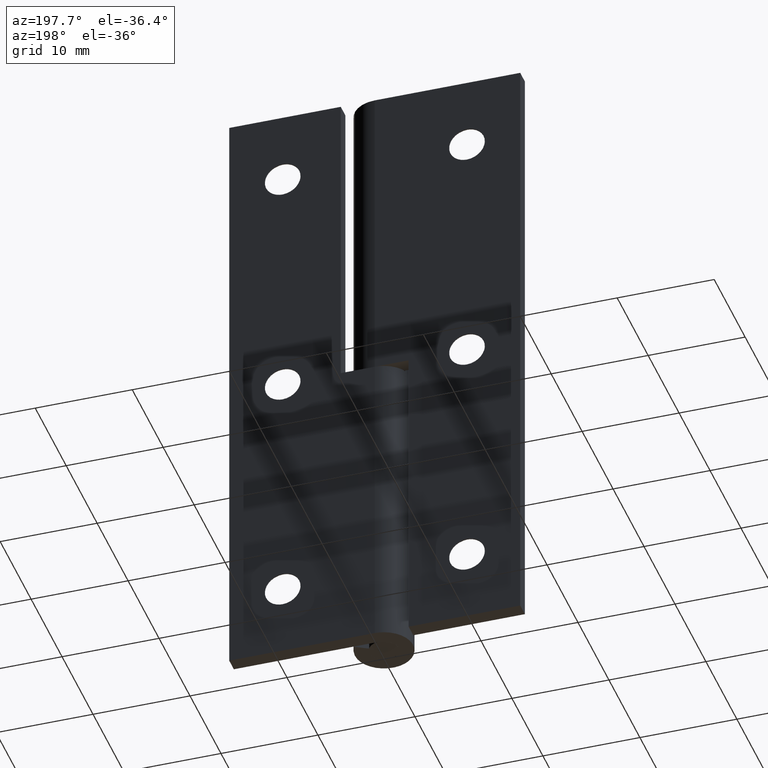
[diagram: clean part render]
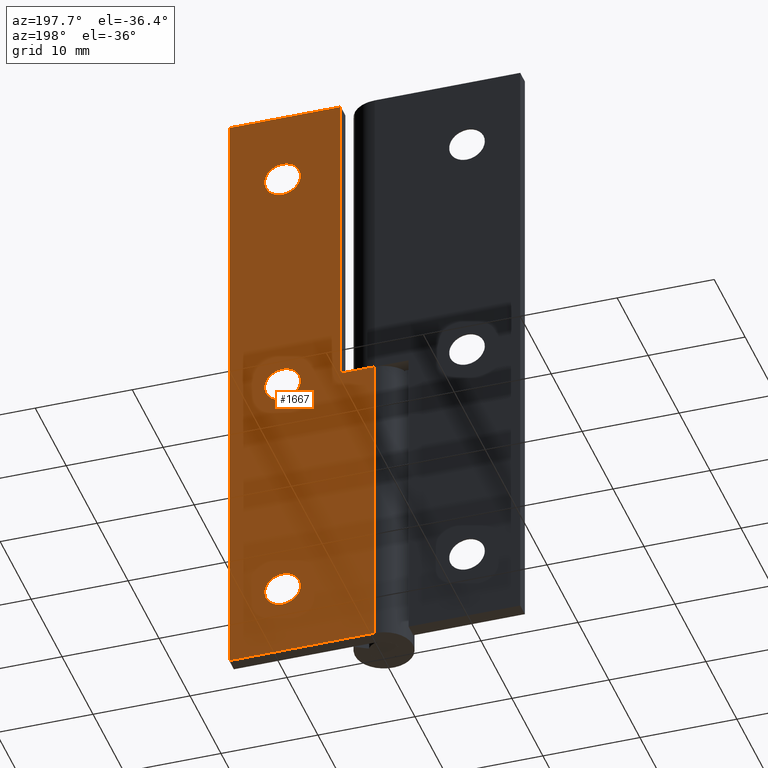
[diagram: same view with one face highlighted and labeled with its STEP entity id]
A machine part, auxiliary view. The second image highlights one B-rep face of the part: STEP entity #1667.
In plain terms, the highlighted face is a freeform B-spline surface patch.
Its self-contained STEP definition (entity closure, byte-faithful):
#369=CARTESIAN_POINT('',(11.337918003000190,3.0,57.288920727950398));
#370=VERTEX_POINT('',#369);
#376=CARTESIAN_POINT('',(9.500000000000000,3.0,55.650007000000002));
#377=VERTEX_POINT('',#376);
#378=CARTESIAN_POINT('',(11.337918003000185,3.000000000000001,57.288920727950391));
#379=CARTESIAN_POINT('',(11.149687484181376,2.999999999999999,55.650007000000002));
#380=CARTESIAN_POINT('',(9.500000000000000,3.0,55.650007000000002));
#388=(BOUNDED_CURVE()B_SPLINE_CURVE(2,(#378,#379,#380),.UNSPECIFIED.,.F.,.U.)B_SPLINE_CURVE_WITH_KNOTS((3,3),(0.269767763662909,0.500000000000000),.UNSPECIFIED.)CURVE()GEOMETRIC_REPRESENTATION_ITEM()RATIONAL_B_SPLINE_CURVE((0.957343721101442,0.730266156898439,1.0))REPRESENTATION_ITEM(''));
#389=EDGE_CURVE('',#370,#377,#388,.T.);
#391=CARTESIAN_POINT('',(7.653450622922810,3.0,57.387067201807142));
#392=VERTEX_POINT('',#391);
#393=CARTESIAN_POINT('',(9.500000000000000,3.0,55.650007000000002));
#394=CARTESIAN_POINT('',(7.759693776325242,3.000000000000000,55.650006999999988));
#395=CARTESIAN_POINT('',(7.653450622922810,3.0,57.387067201807142));
#403=(BOUNDED_CURVE()B_SPLINE_CURVE(2,(#393,#394,#395),.UNSPECIFIED.,.F.,.U.)B_SPLINE_CURVE_WITH_KNOTS((3,3),(0.500000000000000,0.739332962231995),.UNSPECIFIED.)CURVE()GEOMETRIC_REPRESENTATION_ITEM()RATIONAL_B_SPLINE_CURVE((1.0,0.719603993294850,0.976072041651827))REPRESENTATION_ITEM(''));
#404=EDGE_CURVE('',#377,#392,#403,.T.);
#499=CARTESIAN_POINT('',(9.500000000000000,3.0,59.350006999999998));
#500=VERTEX_POINT('',#499);
#501=CARTESIAN_POINT('',(7.653450622922810,3.000000000000000,57.387067201807142));
#502=CARTESIAN_POINT('',(7.650000000000000,3.0,57.443484387844094));
#503=CARTESIAN_POINT('',(7.650000000000000,3.0,57.500006999999997));
#504=CARTESIAN_POINT('',(7.650000000000000,3.0,59.350006999999998));
#505=CARTESIAN_POINT('',(9.500000000000000,3.0,59.350006999999998));
#513=(BOUNDED_CURVE()B_SPLINE_CURVE(2,(#501,#502,#503,#504,#505),.UNSPECIFIED.,.F.,.U.)B_SPLINE_CURVE_WITH_KNOTS((3,2,3),(0.739332962231996,0.750000000000000,1.0),.UNSPECIFIED.)CURVE()GEOMETRIC_REPRESENTATION_ITEM()RATIONAL_B_SPLINE_CURVE((0.976072041651829,0.987502787891698,1.0,0.707106781186548,1.0))REPRESENTATION_ITEM(''));
#514=EDGE_CURVE('',#392,#500,#513,.T.);
#516=CARTESIAN_POINT('',(9.500000000000000,3.0,59.350006999999998));
#517=CARTESIAN_POINT('',(11.350000000000000,3.0,59.350006999999998));
#518=CARTESIAN_POINT('',(11.350000000000000,3.0,57.500006999999997));
#519=CARTESIAN_POINT('',(11.350000000000000,3.0,57.394118072505918));
#520=CARTESIAN_POINT('',(11.337918003000185,3.000000000000001,57.288920727950391));
#528=(BOUNDED_CURVE()B_SPLINE_CURVE(2,(#516,#517,#518,#519,#520),.UNSPECIFIED.,.F.,.U.)B_SPLINE_CURVE_WITH_KNOTS((3,2,3),(0.0,0.250000000000000,0.269767763662909),.UNSPECIFIED.)CURVE()GEOMETRIC_REPRESENTATION_ITEM()RATIONAL_B_SPLINE_CURVE((1.0,0.707106781186548,1.0,0.976840624288108,0.957343721101442))REPRESENTATION_ITEM(''));
#529=EDGE_CURVE('',#500,#370,#528,.T.);
#697=CARTESIAN_POINT('',(11.337918003000190,3.0,32.288913727950401));
#698=VERTEX_POINT('',#697);
#704=CARTESIAN_POINT('',(9.500000000000000,3.0,30.649999999999999));
#705=VERTEX_POINT('',#704);
#706=CARTESIAN_POINT('',(11.337918003000185,3.000000000000000,32.288913727950401));
#707=CARTESIAN_POINT('',(11.149687484181380,3.0,30.649999999999991));
#708=CARTESIAN_POINT('',(9.500000000000000,3.0,30.649999999999999));
#716=(BOUNDED_CURVE()B_SPLINE_CURVE(2,(#706,#707,#708),.UNSPECIFIED.,.F.,.U.)B_SPLINE_CURVE_WITH_KNOTS((3,3),(0.269767763662908,0.500000000000000),.UNSPECIFIED.)CURVE()GEOMETRIC_REPRESENTATION_ITEM()RATIONAL_B_SPLINE_CURVE((0.957343721101443,0.730266156898439,1.0))REPRESENTATION_ITEM(''));
#717=EDGE_CURVE('',#698,#705,#716,.T.);
#719=CARTESIAN_POINT('',(7.653450622922810,3.0,32.387060201807152));
#720=VERTEX_POINT('',#719);
#721=CARTESIAN_POINT('',(9.500000000000000,3.0,30.649999999999999));
#722=CARTESIAN_POINT('',(7.759693776325242,3.000000000000000,30.649999999999991));
#723=CARTESIAN_POINT('',(7.653450622922810,3.0,32.387060201807152));
#731=(BOUNDED_CURVE()B_SPLINE_CURVE(2,(#721,#722,#723),.UNSPECIFIED.,.F.,.U.)B_SPLINE_CURVE_WITH_KNOTS((3,3),(0.500000000000000,0.739332962231995),.UNSPECIFIED.)CURVE()GEOMETRIC_REPRESENTATION_ITEM()RATIONAL_B_SPLINE_CURVE((1.0,0.719603993294850,0.976072041651827))REPRESENTATION_ITEM(''));
#732=EDGE_CURVE('',#705,#720,#731,.T.);
#827=CARTESIAN_POINT('',(9.500000000000000,3.0,34.350000000000001));
#828=VERTEX_POINT('',#827);
#829=CARTESIAN_POINT('',(7.653450622922810,3.000000000000000,32.387060201807152));
#830=CARTESIAN_POINT('',(7.650000000000000,3.000000000000000,32.443477387844098));
#831=CARTESIAN_POINT('',(7.650000000000000,3.0,32.500000000000000));
#832=CARTESIAN_POINT('',(7.650000000000000,3.0,34.350000000000001));
#833=CARTESIAN_POINT('',(9.500000000000000,3.0,34.350000000000001));
#841=(BOUNDED_CURVE()B_SPLINE_CURVE(2,(#829,#830,#831,#832,#833),.UNSPECIFIED.,.F.,.U.)B_SPLINE_CURVE_WITH_KNOTS((3,2,3),(0.739332962231996,0.750000000000000,1.0),.UNSPECIFIED.)CURVE()GEOMETRIC_REPRESENTATION_ITEM()RATIONAL_B_SPLINE_CURVE((0.976072041651828,0.987502787891698,1.0,0.707106781186548,1.0))REPRESENTATION_ITEM(''));
#842=EDGE_CURVE('',#720,#828,#841,.T.);
#844=CARTESIAN_POINT('',(9.500000000000000,3.0,34.350000000000001));
#845=CARTESIAN_POINT('',(11.350000000000000,3.0,34.350000000000001));
#846=CARTESIAN_POINT('',(11.350000000000000,3.0,32.500000000000000));
#847=CARTESIAN_POINT('',(11.350000000000005,3.000000000000000,32.394111072505915));
#848=CARTESIAN_POINT('',(11.337918003000185,3.000000000000000,32.288913727950401));
#856=(BOUNDED_CURVE()B_SPLINE_CURVE(2,(#844,#845,#846,#847,#848),.UNSPECIFIED.,.F.,.U.)B_SPLINE_CURVE_WITH_KNOTS((3,2,3),(0.0,0.250000000000000,0.269767763662908),.UNSPECIFIED.)CURVE()GEOMETRIC_REPRESENTATION_ITEM()RATIONAL_B_SPLINE_CURVE((1.0,0.707106781186548,1.0,0.976840624288109,0.957343721101443))REPRESENTATION_ITEM(''));
#857=EDGE_CURVE('',#828,#698,#856,.T.);
#1025=CARTESIAN_POINT('',(11.337918003000190,3.0,7.288913727950298));
#1026=VERTEX_POINT('',#1025);
#1032=CARTESIAN_POINT('',(9.500000000000000,3.0,5.649999999999900));
#1033=VERTEX_POINT('',#1032);
#1034=CARTESIAN_POINT('',(11.337918003000190,3.000000000000001,7.288913727950298));
#1035=CARTESIAN_POINT('',(11.149687484181378,3.0,5.649999999999899));
#1036=CARTESIAN_POINT('',(9.500000000000000,3.0,5.649999999999900));
#1044=(BOUNDED_CURVE()B_SPLINE_CURVE(2,(#1034,#1035,#1036),.UNSPECIFIED.,.F.,.U.)B_SPLINE_CURVE_WITH_KNOTS((3,3),(0.269767763662908,0.500000000000000),.UNSPECIFIED.)CURVE()GEOMETRIC_REPRESENTATION_ITEM()RATIONAL_B_SPLINE_CURVE((0.957343721101443,0.730266156898439,1.0))REPRESENTATION_ITEM(''));
#1045=EDGE_CURVE('',#1026,#1033,#1044,.T.);
#1047=CARTESIAN_POINT('',(7.653450622922810,3.0,7.387060201807055));
#1048=VERTEX_POINT('',#1047);
#1049=CARTESIAN_POINT('',(9.500000000000000,3.0,5.649999999999900));
#1050=CARTESIAN_POINT('',(7.759693776325242,3.000000000000000,5.649999999999899));
#1051=CARTESIAN_POINT('',(7.653450622922810,3.0,7.387060201807055));
#1059=(BOUNDED_CURVE()B_SPLINE_CURVE(2,(#1049,#1050,#1051),.UNSPECIFIED.,.F.,.U.)B_SPLINE_CURVE_WITH_KNOTS((3,3),(0.500000000000000,0.739332962231995),.UNSPECIFIED.)CURVE()GEOMETRIC_REPRESENTATION_ITEM()RATIONAL_B_SPLINE_CURVE((1.0,0.719603993294850,0.976072041651827))REPRESENTATION_ITEM(''));
#1060=EDGE_CURVE('',#1033,#1048,#1059,.T.);
#1155=CARTESIAN_POINT('',(9.500000000000000,3.0,9.349999999999900));
#1156=VERTEX_POINT('',#1155);
#1157=CARTESIAN_POINT('',(7.653450622922810,3.0,7.387060201807055));
#1158=CARTESIAN_POINT('',(7.650000000000000,3.0,7.443477387844000));
#1159=CARTESIAN_POINT('',(7.650000000000000,3.0,7.499999999999900));
#1160=CARTESIAN_POINT('',(7.650000000000000,3.0,9.349999999999902));
#1161=CARTESIAN_POINT('',(9.500000000000000,3.0,9.349999999999900));
#1169=(BOUNDED_CURVE()B_SPLINE_CURVE(2,(#1157,#1158,#1159,#1160,#1161),.UNSPECIFIED.,.F.,.U.)B_SPLINE_CURVE_WITH_KNOTS((3,2,3),(0.739332962231996,0.750000000000000,1.0),.UNSPECIFIED.)CURVE()GEOMETRIC_REPRESENTATION_ITEM()RATIONAL_B_SPLINE_CURVE((0.976072041651829,0.987502787891699,1.0,0.707106781186548,1.0))REPRESENTATION_ITEM(''));
#1170=EDGE_CURVE('',#1048,#1156,#1169,.T.);
#1172=CARTESIAN_POINT('',(9.500000000000000,3.0,9.349999999999900));
#1173=CARTESIAN_POINT('',(11.350000000000000,3.0,9.349999999999902));
#1174=CARTESIAN_POINT('',(11.350000000000000,3.0,7.499999999999900));
#1175=CARTESIAN_POINT('',(11.350000000000007,3.000000000000000,7.394111072505813));
#1176=CARTESIAN_POINT('',(11.337918003000189,3.000000000000000,7.288913727950298));
#1184=(BOUNDED_CURVE()B_SPLINE_CURVE(2,(#1172,#1173,#1174,#1175,#1176),.UNSPECIFIED.,.F.,.U.)B_SPLINE_CURVE_WITH_KNOTS((3,2,3),(0.0,0.250000000000000,0.269767763662908),.UNSPECIFIED.)CURVE()GEOMETRIC_REPRESENTATION_ITEM()RATIONAL_B_SPLINE_CURVE((1.0,0.707106781186548,1.0,0.976840624288109,0.957343721101443))REPRESENTATION_ITEM(''));
#1185=EDGE_CURVE('',#1156,#1026,#1184,.T.);
#1332=CARTESIAN_POINT('',(3.499999999999901,3.0,65.000006999999997));
#1333=VERTEX_POINT('',#1332);
#1339=CARTESIAN_POINT('',(3.499999999999901,3.0,32.500000000000000));
#1340=VERTEX_POINT('',#1339);
#1341=CARTESIAN_POINT('',(3.499999999999901,3.0,65.000006999999997));
#1342=CARTESIAN_POINT('',(3.499999999999901,3.0,32.500000000000000));
#1343=QUASI_UNIFORM_CURVE('',1,(#1341,#1342),.UNSPECIFIED.,.F.,.U.);
#1344=EDGE_CURVE('',#1333,#1340,#1343,.T.);
#1361=CARTESIAN_POINT('',(0.0,3.0,32.500000000000000));
#1362=VERTEX_POINT('',#1361);
#1416=CARTESIAN_POINT('',(3.499999999999901,3.0,32.500000000000000));
#1417=CARTESIAN_POINT('',(0.0,3.0,32.500000000000000));
#1418=QUASI_UNIFORM_CURVE('',1,(#1416,#1417),.UNSPECIFIED.,.F.,.U.);
#1419=EDGE_CURVE('',#1340,#1362,#1418,.T.);
#1429=CARTESIAN_POINT('',(15.0,3.0,65.000006999999997));
#1430=VERTEX_POINT('',#1429);
#1431=CARTESIAN_POINT('',(15.0,3.0,65.000006999999997));
#1432=CARTESIAN_POINT('',(3.499999999999901,3.0,65.000006999999997));
#1433=QUASI_UNIFORM_CURVE('',1,(#1431,#1432),.UNSPECIFIED.,.F.,.U.);
#1434=EDGE_CURVE('',#1430,#1333,#1433,.T.);
#1487=CARTESIAN_POINT('',(0.0,3.0,0.0));
#1488=VERTEX_POINT('',#1487);
#1508=CARTESIAN_POINT('',(15.0,3.0,0.0));
#1509=VERTEX_POINT('',#1508);
#1510=CARTESIAN_POINT('',(15.0,3.0,0.0));
#1511=CARTESIAN_POINT('',(0.0,3.0,0.0));
#1512=QUASI_UNIFORM_CURVE('',1,(#1510,#1511),.UNSPECIFIED.,.F.,.U.);
#1513=EDGE_CURVE('',#1509,#1488,#1512,.T.);
#1574=CARTESIAN_POINT('',(0.0,3.0,0.0));
#1575=CARTESIAN_POINT('',(0.0,3.0,32.500000000000000));
#1576=QUASI_UNIFORM_CURVE('',1,(#1574,#1575),.UNSPECIFIED.,.F.,.U.);
#1577=EDGE_CURVE('',#1488,#1362,#1576,.T.);
#1595=CARTESIAN_POINT('',(15.0,3.0,0.0));
#1596=CARTESIAN_POINT('',(15.0,3.0,65.000006999999997));
#1597=QUASI_UNIFORM_CURVE('',1,(#1595,#1596),.UNSPECIFIED.,.F.,.U.);
#1598=EDGE_CURVE('',#1509,#1430,#1597,.T.);
#1636=CARTESIAN_POINT('',(-0.749249970927088,3.0,-3.246750223667376));
#1637=CARTESIAN_POINT('',(-0.749249970927088,3.0,68.246758967103403));
#1638=CARTESIAN_POINT('',(15.749250373258439,3.0,-3.246750223667376));
#1639=CARTESIAN_POINT('',(15.749250373258439,3.0,68.246758967103418));
#1640=B_SPLINE_SURFACE_WITH_KNOTS('',1,1,((#1636,#1638),(#1637,#1639)),.UNSPECIFIED.,.F.,.F.,.U.,(2,2),(2,2),(0.0,71.493509190770794),(0.0,16.498500344185530),.UNSPECIFIED.);
#1641=ORIENTED_EDGE('',*,*,#1344,.F.);
#1642=ORIENTED_EDGE('',*,*,#1434,.F.);
#1643=ORIENTED_EDGE('',*,*,#1598,.F.);
#1644=ORIENTED_EDGE('',*,*,#1513,.T.);
#1645=ORIENTED_EDGE('',*,*,#1577,.T.);
#1646=ORIENTED_EDGE('',*,*,#1419,.F.);
#1647=EDGE_LOOP('',(#1641,#1642,#1643,#1644,#1645,#1646));
#1648=FACE_OUTER_BOUND('',#1647,.T.);
#1649=ORIENTED_EDGE('',*,*,#1060,.F.);
#1650=ORIENTED_EDGE('',*,*,#1045,.F.);
#1651=ORIENTED_EDGE('',*,*,#1185,.F.);
#1652=ORIENTED_EDGE('',*,*,#1170,.F.);
#1653=EDGE_LOOP('',(#1649,#1650,#1651,#1652));
#1654=FACE_BOUND('',#1653,.T.);
#1655=ORIENTED_EDGE('',*,*,#732,.F.);
#1656=ORIENTED_EDGE('',*,*,#717,.F.);
#1657=ORIENTED_EDGE('',*,*,#857,.F.);
#1658=ORIENTED_EDGE('',*,*,#842,.F.);
#1659=EDGE_LOOP('',(#1655,#1656,#1657,#1658));
#1660=FACE_BOUND('',#1659,.T.);
#1661=ORIENTED_EDGE('',*,*,#404,.F.);
#1662=ORIENTED_EDGE('',*,*,#389,.F.);
#1663=ORIENTED_EDGE('',*,*,#529,.F.);
#1664=ORIENTED_EDGE('',*,*,#514,.F.);
#1665=EDGE_LOOP('',(#1661,#1662,#1663,#1664));
#1666=FACE_BOUND('',#1665,.T.);
#1667=ADVANCED_FACE('',(#1648,#1654,#1660,#1666),#1640,.T.);